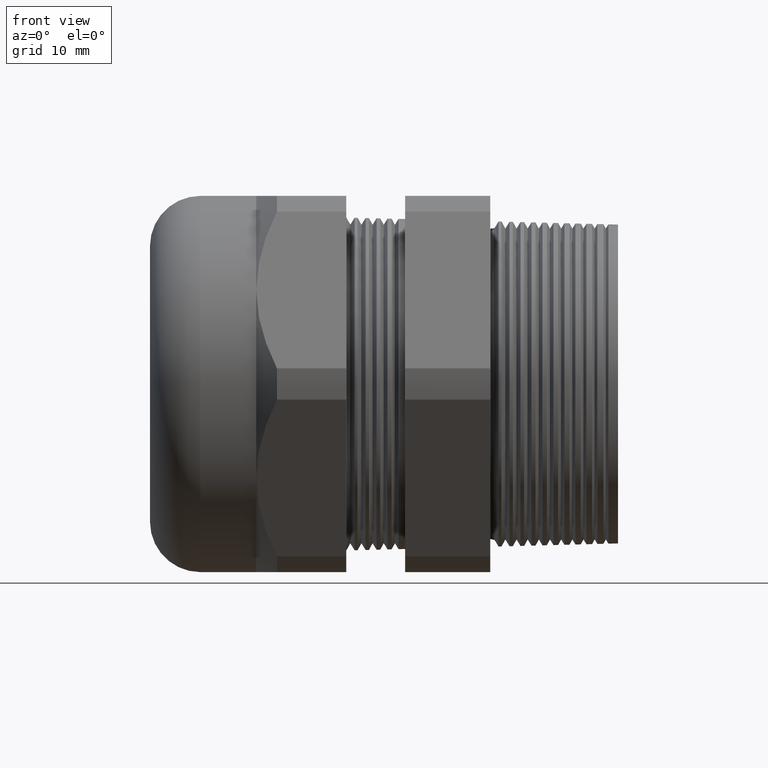
[diagram: clean part render]
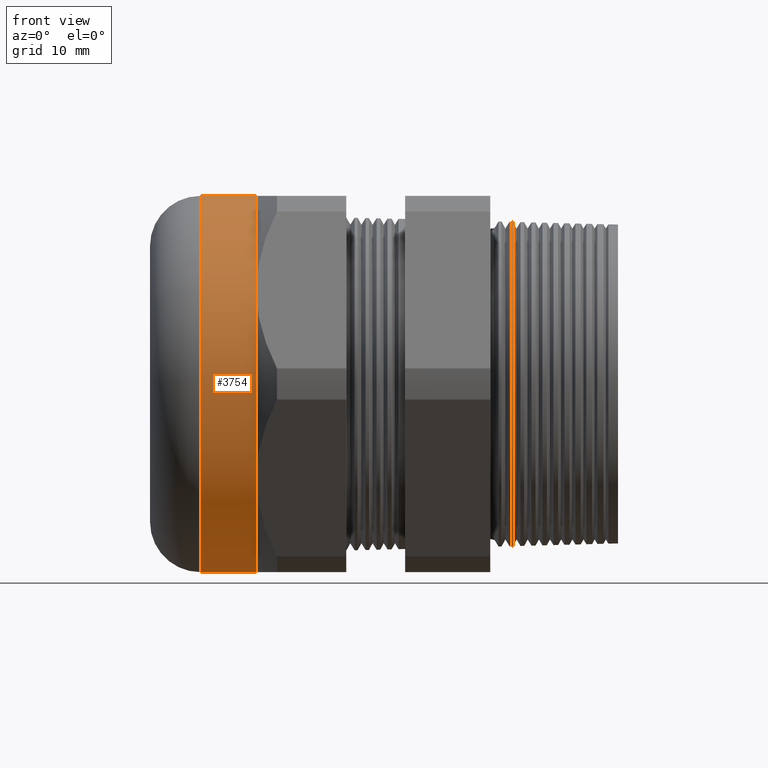
[diagram: same view with one face highlighted and labeled with its STEP entity id]
A machine part, front view. The second image highlights one B-rep face of the part: STEP entity #3754.
In plain terms, the highlighted cylindrical surface (partial cylindrical patch) has radius 26.543 mm, axis along (1, 0, 0).
Its self-contained STEP definition (entity closure, byte-faithful):
#295 = VERTEX_POINT ( 'NONE', #1209 ) ;
#297 = EDGE_CURVE ( 'NONE', #462, #295, #1208, .T. ) ;
#316 = EDGE_CURVE ( 'NONE', #463, #317, #1297, .T. ) ;
#317 = VERTEX_POINT ( 'NONE', #1293 ) ;
#462 = VERTEX_POINT ( 'NONE', #1519 ) ;
#463 = VERTEX_POINT ( 'NONE', #1518 ) ;
#1205 = DIRECTION ( 'NONE',  ( 1.000000000000000000, 0.0000000000000000000, 0.0000000000000000000 ) ) ;
#1206 = VECTOR ( 'NONE', #1205, 39.37007874015748100 ) ;
#1207 = CARTESIAN_POINT ( 'NONE',  ( 0.0000000000000000000, 0.0000000000000000000, -1.044999999999999900 ) ) ;
#1208 = LINE ( 'NONE', #1207, #1206 ) ;
#1209 = CARTESIAN_POINT ( 'NONE',  ( -1.609449999999999400, 0.0000000000000000000, -1.045000000000000400 ) ) ;
#1293 = CARTESIAN_POINT ( 'NONE',  ( -1.609449999999999400, 0.0000000000000000000, 1.044999999999999700 ) ) ;
#1294 = DIRECTION ( 'NONE',  ( 1.000000000000000000, 0.0000000000000000000, 0.0000000000000000000 ) ) ;
#1295 = VECTOR ( 'NONE', #1294, 39.37007874015748100 ) ;
#1296 = CARTESIAN_POINT ( 'NONE',  ( 0.0000000000000000000, 1.279755905108984100E-016, 1.044999999999999900 ) ) ;
#1297 = LINE ( 'NONE', #1296, #1295 ) ;
#1518 = CARTESIAN_POINT ( 'NONE',  ( -1.919999999999999500, 1.279755905108984100E-016, 1.044999999999999900 ) ) ;
#1519 = CARTESIAN_POINT ( 'NONE',  ( -1.919999999999999500, 0.0000000000000000000, -1.044999999999999900 ) ) ;
#2401 = DIRECTION ( 'NONE',  ( 0.0000000000000000000, 0.0000000000000000000, -1.000000000000000000 ) ) ;
#2402 = DIRECTION ( 'NONE',  ( 1.000000000000000000, 0.0000000000000000000, 0.0000000000000000000 ) ) ;
#2403 = CARTESIAN_POINT ( 'NONE',  ( -1.609449999999999400, 0.0000000000000000000, 0.0000000000000000000 ) ) ;
#2404 = AXIS2_PLACEMENT_3D ( 'NONE', #2403, #2402, #2401 ) ;
#2405 = CIRCLE ( 'NONE', #2404, 1.044999999999999900 ) ;
#2406 = DIRECTION ( 'NONE',  ( 0.0000000000000000000, 0.0000000000000000000, -1.000000000000000000 ) ) ;
#2407 = DIRECTION ( 'NONE',  ( 1.000000000000000000, 0.0000000000000000000, 0.0000000000000000000 ) ) ;
#2408 = CARTESIAN_POINT ( 'NONE',  ( -1.609449999999999400, 0.0000000000000000000, 0.0000000000000000000 ) ) ;
#2409 = AXIS2_PLACEMENT_3D ( 'NONE', #2408, #2407, #2406 ) ;
#2414 = CIRCLE ( 'NONE', #2409, 1.044999999999999900 ) ;
#2436 = CARTESIAN_POINT ( 'NONE',  ( -1.609449999999999400, 0.0000000000000000000, 0.0000000000000000000 ) ) ;
#2448 = DIRECTION ( 'NONE',  ( 0.0000000000000000000, 0.0000000000000000000, -1.000000000000000000 ) ) ;
#2449 = DIRECTION ( 'NONE',  ( 1.000000000000000000, 0.0000000000000000000, 0.0000000000000000000 ) ) ;
#2450 = CARTESIAN_POINT ( 'NONE',  ( 0.0000000000000000000, 0.0000000000000000000, 0.0000000000000000000 ) ) ;
#2451 = AXIS2_PLACEMENT_3D ( 'NONE', #2450, #2449, #2448 ) ;
#2453 = CYLINDRICAL_SURFACE ( 'NONE', #2451, 1.044999999999999900 ) ;
#2454 = FACE_OUTER_BOUND ( 'NONE', #3756, .T. ) ;
#2455 = DIRECTION ( 'NONE',  ( 0.0000000000000000000, 0.0000000000000000000, 1.000000000000000000 ) ) ;
#2456 = DIRECTION ( 'NONE',  ( 1.000000000000000000, 0.0000000000000000000, 0.0000000000000000000 ) ) ;
#2457 = CARTESIAN_POINT ( 'NONE',  ( -1.919999999999999500, 0.0000000000000000000, 0.0000000000000000000 ) ) ;
#2458 = AXIS2_PLACEMENT_3D ( 'NONE', #2457, #2456, #2455 ) ;
#2459 = CIRCLE ( 'NONE', #2458, 1.044999999999999900 ) ;
#2494 = DIRECTION ( 'NONE',  ( 0.0000000000000000000, 0.0000000000000000000, -1.000000000000000000 ) ) ;
#2495 = DIRECTION ( 'NONE',  ( 1.000000000000000000, 0.0000000000000000000, 0.0000000000000000000 ) ) ;
#2496 = AXIS2_PLACEMENT_3D ( 'NONE', #2436, #2495, #2494 ) ;
#2497 = CIRCLE ( 'NONE', #2496, 1.044999999999999900 ) ;
#2867 = CARTESIAN_POINT ( 'NONE',  ( -1.609449999999999400, -0.9049965469547385200, 0.5224999999999997400 ) ) ;
#3255 = CARTESIAN_POINT ( 'NONE',  ( -1.609449999999999400, -0.9049965469547379700, -0.5225000000000000800 ) ) ;
#3741 = EDGE_CURVE ( 'NONE', #4255, #295, #2414, .T. ) ;
#3743 = ORIENTED_EDGE ( 'NONE', *, *, #3744, .F. ) ;
#3744 = EDGE_CURVE ( 'NONE', #4030, #4255, #2405, .T. ) ;
#3745 = ORIENTED_EDGE ( 'NONE', *, *, #3768, .F. ) ;
#3750 = EDGE_CURVE ( 'NONE', #463, #462, #2459, .T. ) ;
#3751 = ORIENTED_EDGE ( 'NONE', *, *, #297, .T. ) ;
#3752 = ORIENTED_EDGE ( 'NONE', *, *, #3741, .F. ) ;
#3754 = ADVANCED_FACE ( 'NONE', ( #2454 ), #2453, .T. ) ;
#3756 = EDGE_LOOP ( 'NONE', ( #3760, #3764, #3751, #3752, #3743, #3745 ) ) ;
#3760 = ORIENTED_EDGE ( 'NONE', *, *, #316, .F. ) ;
#3764 = ORIENTED_EDGE ( 'NONE', *, *, #3750, .T. ) ;
#3768 = EDGE_CURVE ( 'NONE', #317, #4030, #2497, .T. ) ;
#4030 = VERTEX_POINT ( 'NONE', #2867 ) ;
#4255 = VERTEX_POINT ( 'NONE', #3255 ) ;